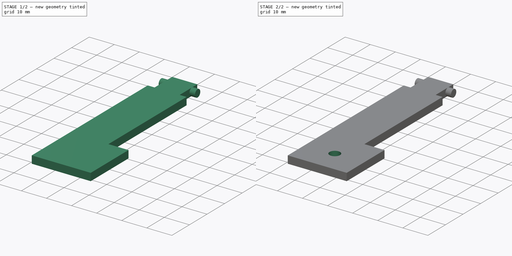
[diagram: build sequence overview — one tinted view per stage of 2, left to right]
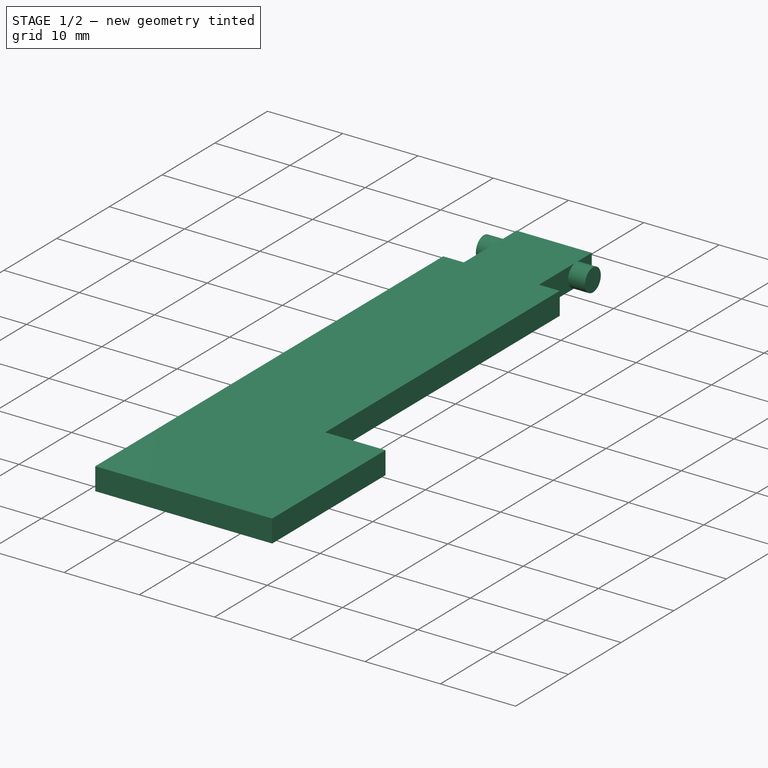
[diagram: stage 1 of 2 — iso view after this stage's code; geometry added in this stage tinted green]
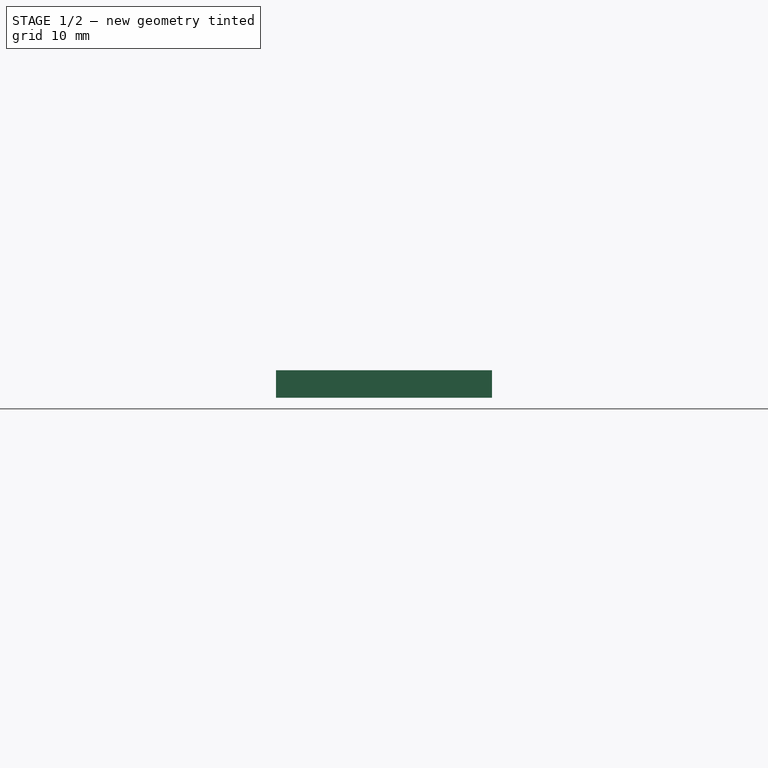
[diagram: stage 1 of 2 — front view after this stage's code; geometry added in this stage tinted green]
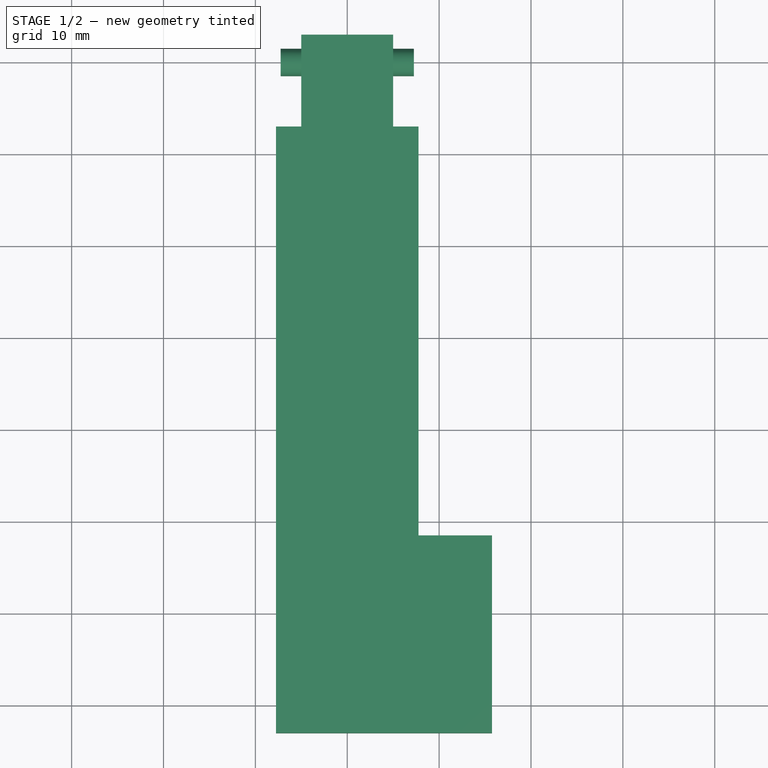
[diagram: stage 1 of 2 — top view after this stage's code; geometry added in this stage tinted green]
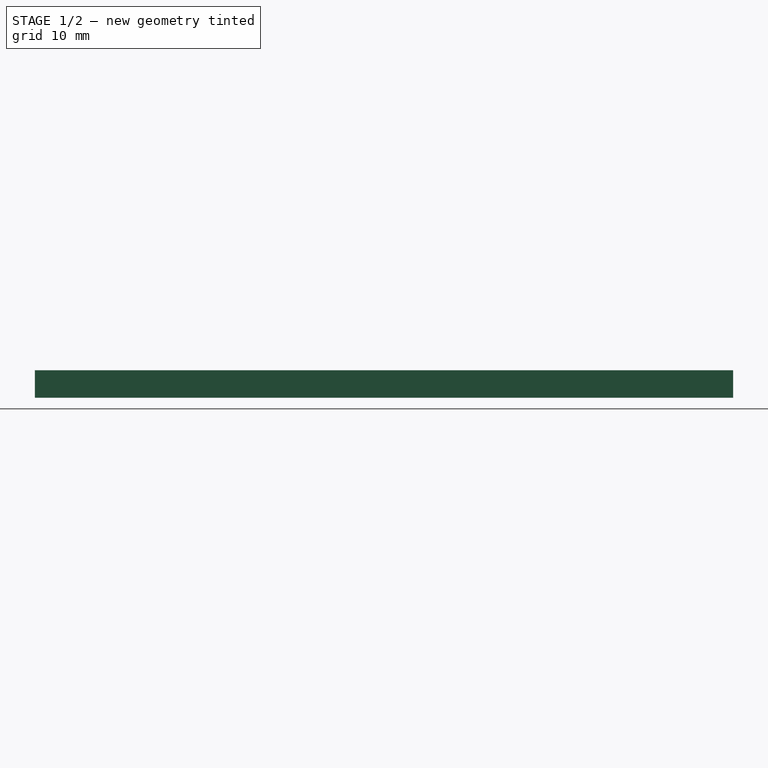
[diagram: stage 1 of 2 — right view after this stage's code; geometry added in this stage tinted green]
FCSTD DOCUMENT  (FreeCAD 0.20R29177 (Git))
Label: key_3
License: All rights reserved
LicenseURL: http://en.wikipedia.org/wiki/All_rights_reserved
objects: Sketcher::SketchObject×3, PartDesign::Pad×2, PartDesign::Pocket×1, PartDesign::Body×1
note: 10 computed .brp shape members not serialized (recipe doc carries the construction recipe); baked Part::Feature solids carry a one-line shape summary decoded from their .brp

FEATURE [Sketcher::SketchObject] Sketch
  FullyConstrained = true
  MapMode = 5
  Support = -> [XY_Plane]
  sketch-geometry (11):
    g0: LineSegment StartX=-7.75 StartY=33 StartZ=0 EndX=-7.75 EndY=-33 EndZ=0
    g1: LineSegment StartX=-7.75 StartY=-33 StartZ=0 EndX=15.75 EndY=-33 EndZ=0
    g2: LineSegment StartX=15.75 StartY=-33 StartZ=0 EndX=15.75 EndY=-11.5 EndZ=0
    g3: LineSegment StartX=15.75 StartY=-11.5 StartZ=0 EndX=7.75 EndY=-11.5 EndZ=0
    g4: LineSegment StartX=7.75 StartY=-11.5 StartZ=0 EndX=7.75 EndY=33 EndZ=0
    g5: LineSegment StartX=7.75 StartY=33 StartZ=0 EndX=5 EndY=33 EndZ=0
    g6: LineSegment StartX=5 StartY=33 StartZ=0 EndX=5 EndY=43 EndZ=0
    g7: LineSegment StartX=5 StartY=43 StartZ=0 EndX=-5 EndY=43 EndZ=0
    g8: LineSegment StartX=-5 StartY=43 StartZ=0 EndX=-5 EndY=33 EndZ=0
    g9: LineSegment StartX=-5 StartY=33 StartZ=0 EndX=-7.75 EndY=33 EndZ=0
    g10: LineSegment StartX=-5 StartY=33 StartZ=0 EndX=5 EndY=33 EndZ=0
  constraints (32):
    c: Vertical(g0)
    c: Coincident(g0,g1)
    c: Horizontal(g1)
    c: Coincident(g1,g2)
    c: Vertical(g2)
    c: Coincident(g2,g3)
    c: Coincident(g3,g4)
    c: Vertical(g4)
    c: Coincident(g4,g5)
    c: Coincident(g5,g6)
    c: Coincident(g6,g7)
    c: Coincident(g7,g8)
    c: Coincident(g8,g9)
    c: Coincident(g9,g0)
    c: Horizontal(g9)
    c: Horizontal(g5)
    c: Horizontal(g7)
    c: Vertical(g8)
    c: Vertical(g6)
    c: Horizontal(g3)
    c: DistanceX(g1,g1) = 23.5
    c: DistanceX(g0,g4) = 15.5
    c: DistanceX(g7,g7) = 10
    c: DistanceX(g9,g9) = 2.75
    c: DistanceY(g6,g6) = 10
    c: Coincident(g10,g8)
    c: Coincident(g10,g5)
    c: Horizontal(g10)
    c: DistanceY(g0,g0) = 66
    c: DistanceY(g2,g2) = 21.5
    c: DistanceY(g0,g-1) = 33
    c: DistanceX(g8,g-1) = 5
FEATURE [PartDesign::Pad] Pad
  Direction = (0,0,1)
  Length = 3
  Length2 = 100
  Profile = -> Sketch
  Type = 0
FEATURE [Sketcher::SketchObject] Sketch001
  FullyConstrained = true
  MapMode = 5
  Placement = pos=(0,0,0) rot=(0.57735,0.57735,0.57735;2.0944rad)
  Support = -> [YZ_Plane]
  sketch-geometry (1):
    g0: Circle CenterX=40 CenterY=1.5 CenterZ=0 NormalX=0 NormalY=0 NormalZ=1 AngleXU=0 Radius=1.5
  constraints (3):
    c: Tangent(g0,g-1)
    c: Radius(g0) = 1.5
    c: DistanceX(g-1,g0) = 40
FEATURE [PartDesign::Pad] Pad001
  BaseFeature = -> Pad
  Direction = (1,-2e-16,3e-16)
  Length = 14.5
  Length2 = 100
  Midplane = true
  Profile = -> Sketch001
  Type = 0
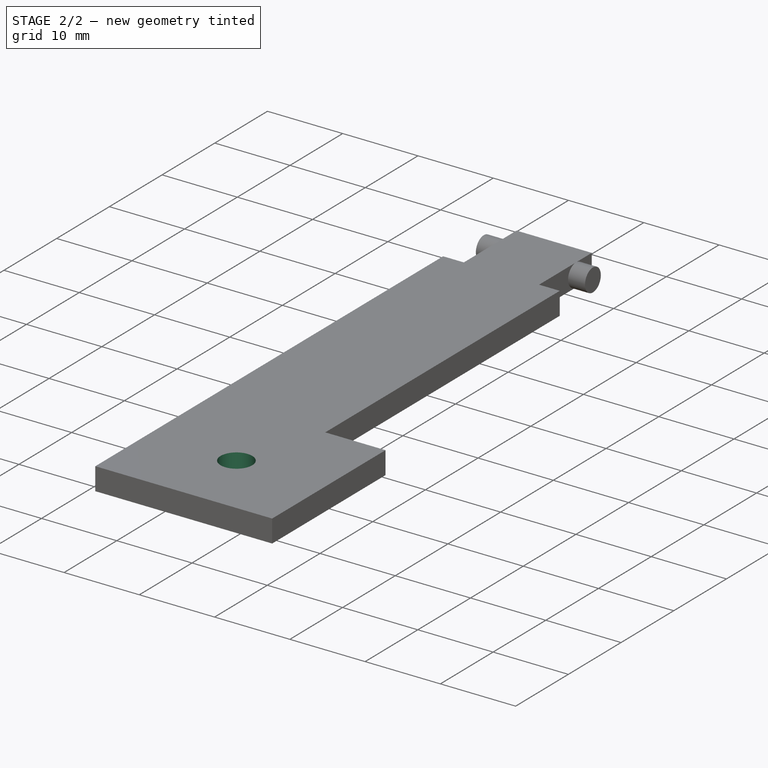
[diagram: stage 2 of 2 — iso view after this stage's code; geometry added in this stage tinted green]
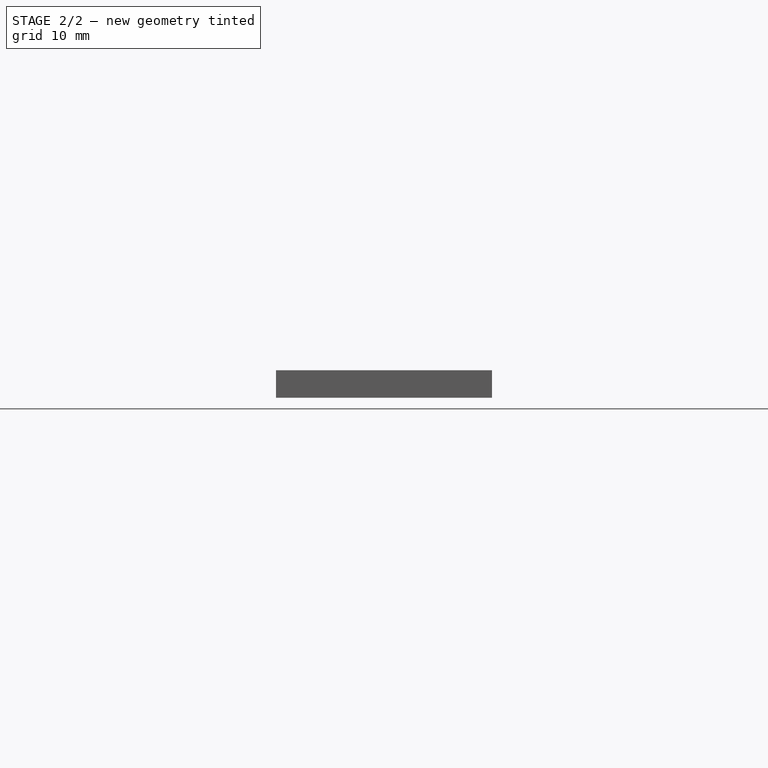
[diagram: stage 2 of 2 — front view after this stage's code; geometry added in this stage tinted green]
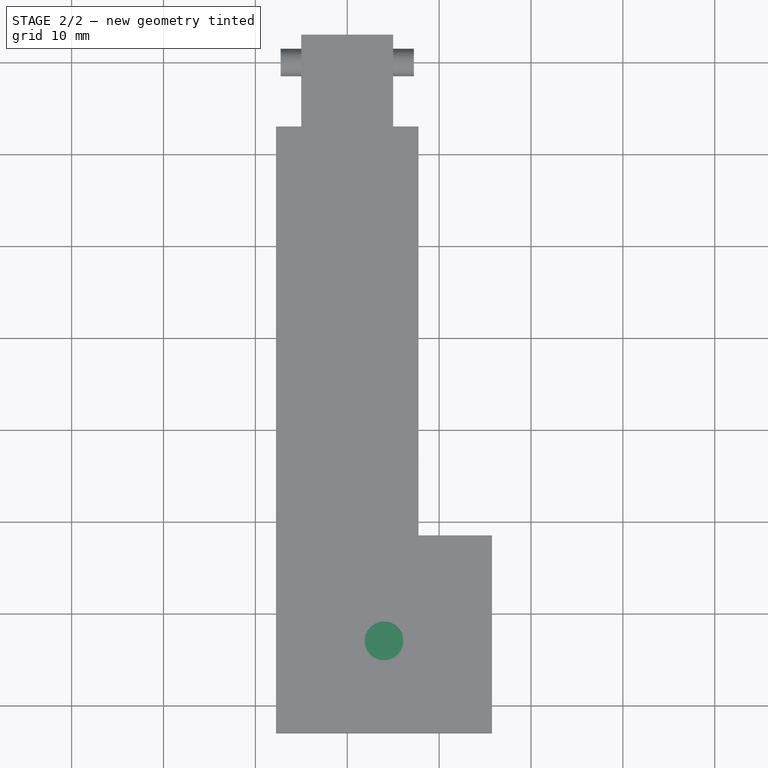
[diagram: stage 2 of 2 — top view after this stage's code; geometry added in this stage tinted green]
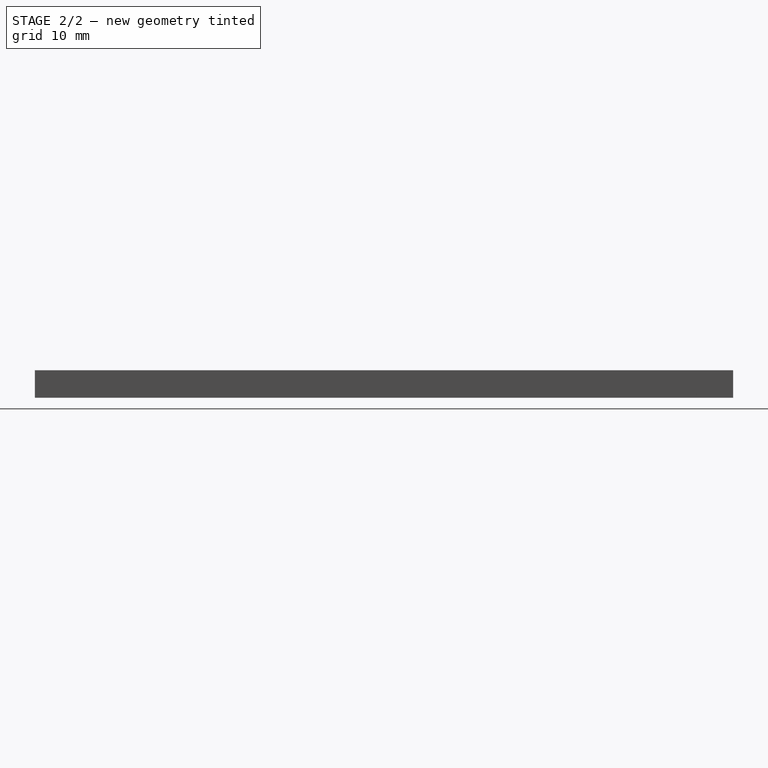
[diagram: stage 2 of 2 — right view after this stage's code; geometry added in this stage tinted green]
FEATURE [Sketcher::SketchObject] Sketch002
  FullyConstrained = true
  MapMode = 5
  Placement = pos=(0,0,3) rot=(0,0,1;0rad)
  Support = -> [Pad001]
  sketch-geometry (5):
    g0: LineSegment StartX=15.75 StartY=-11.5 StartZ=0 EndX=15.75 EndY=-33 EndZ=0
    g1: LineSegment StartX=15.75 StartY=-33 StartZ=0 EndX=-7.75 EndY=-33 EndZ=0
    g2: LineSegment StartX=-7.75 StartY=-33 StartZ=0 EndX=-7.75 EndY=-11.5 EndZ=0
    g3: LineSegment StartX=-7.75 StartY=-11.5 StartZ=0 EndX=15.75 EndY=-11.5 EndZ=0
    g4: Circle CenterX=4 CenterY=-23 CenterZ=0 NormalX=0 NormalY=0 NormalZ=1 AngleXU=0 Radius=2.1
  constraints (15):
    c: Vertical(g0)
    c: Coincident(g0,g1)
    c: Horizontal(g1)
    c: Coincident(g1,g2)
    c: Vertical(g2)
    c: Coincident(g2,g3)
    c: Coincident(g3,g0)
    c: Horizontal(g3)
    c: DistanceX(g1,g1) = 23.5
    c: DistanceY(g0,g0) = 21.5
    c: DistanceY(g1,g-1) = 33
    c: DistanceX(g2,g-1) = 7.75
    c: DistanceY(g0,g4) = 10
    c: DistanceX(g4,g0) = 11.75
    c: Diameter(g4) = 4.2
FEATURE [PartDesign::Pocket] Pocket
  BaseFeature = -> Pad001
  Direction = (0,0,-1)
  Length = 2
  Length2 = 5
  Profile = -> Sketch002
  ReferenceAxis = -> Sketch002 [N_Axis]
  Type = 0
FEATURE [PartDesign::Body] Body  label="key_3"
  Group = -> [Sketch,Pad,Sketch001,Pad001,Sketch002,Pocket]
  Origin = -> Origin
  Tip = -> Pocket
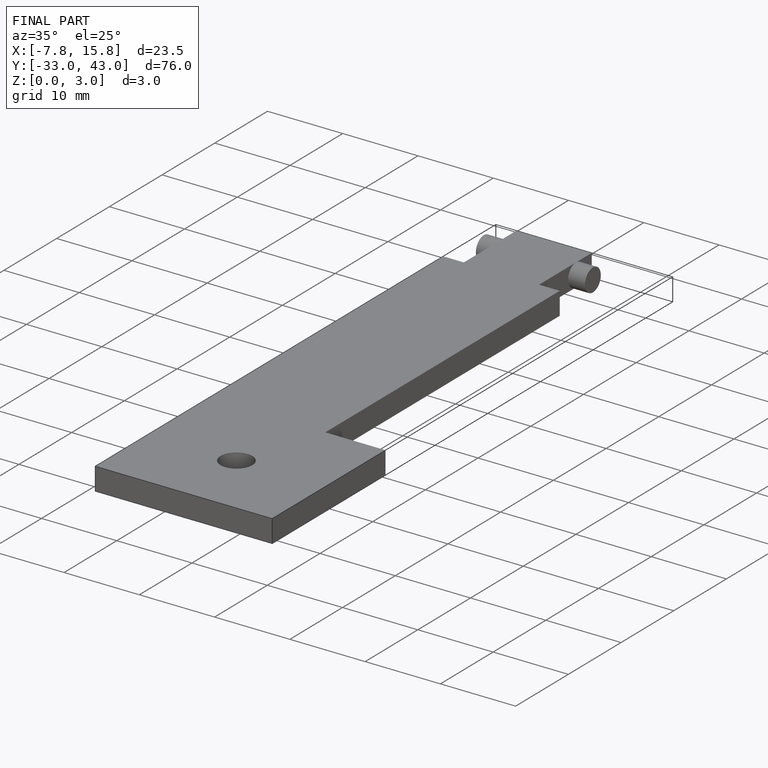
[diagram: finished part — iso view with bounding-box wireframe]
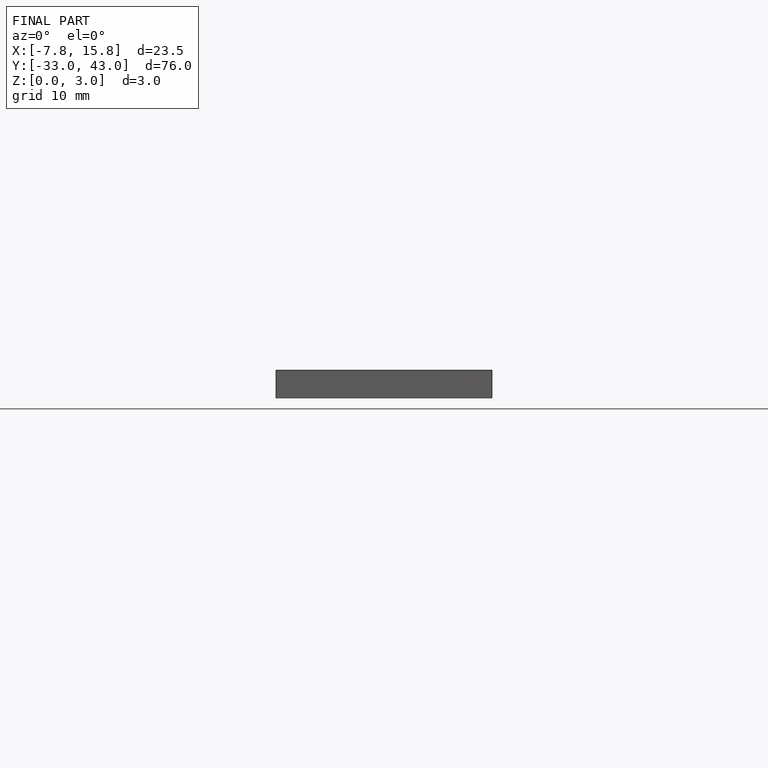
[diagram: finished part — front view with bounding-box wireframe]
